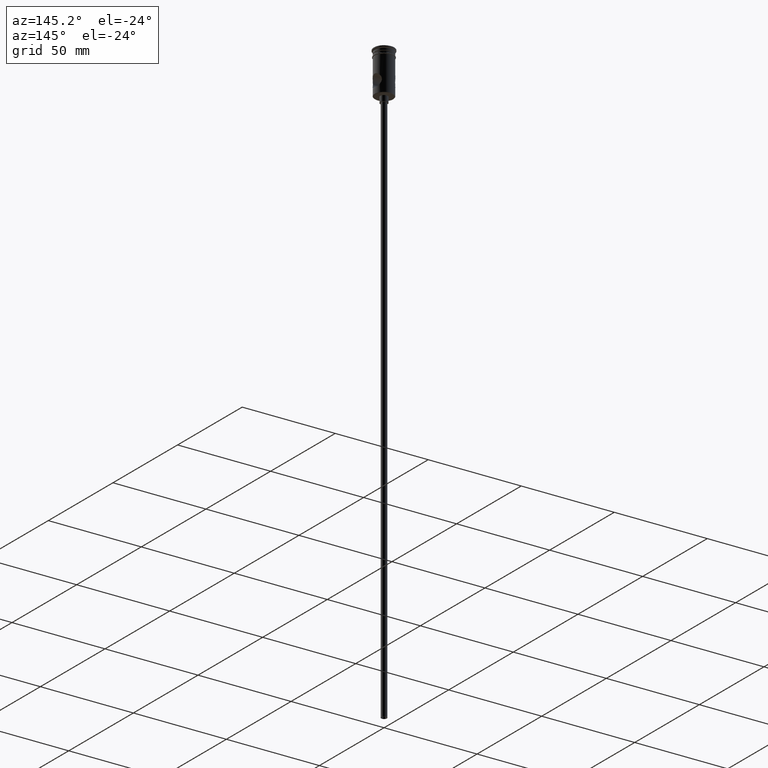
[diagram: clean part render]
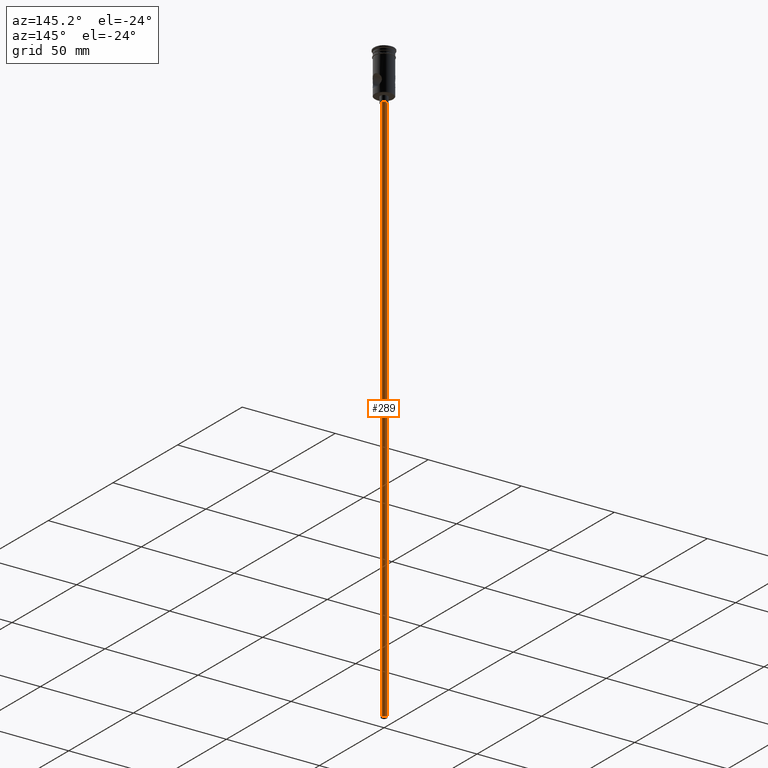
[diagram: same view with one face highlighted and labeled with its STEP entity id]
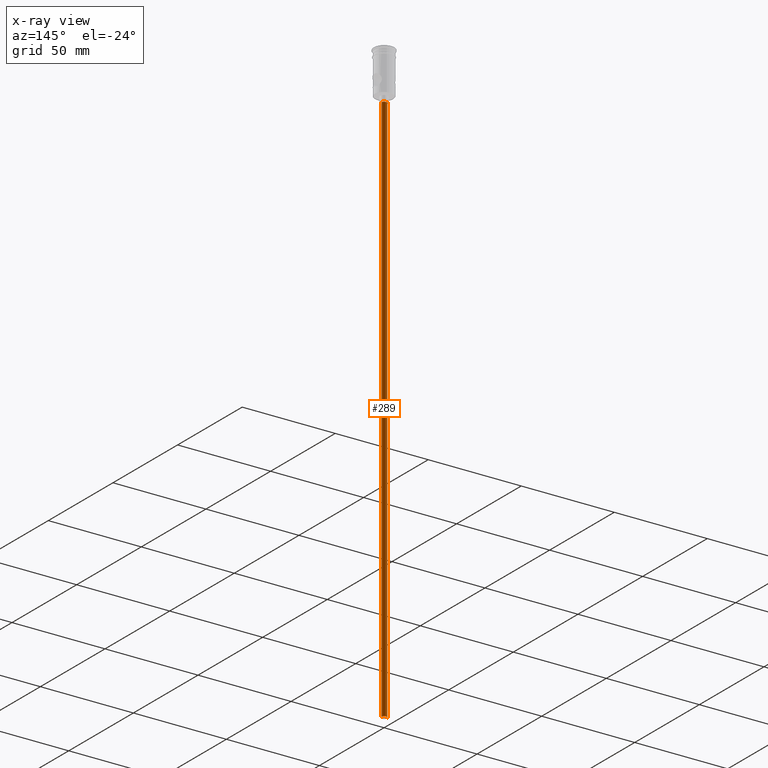
[diagram: x-ray of the same camera — body ghosted, the highlighted face saturated]
A machine part, auxiliary view. The second image highlights one B-rep face of the part: STEP entity #289.
The next image is the same camera in x-ray: the body ghosted, the highlighted face saturated — about 0% of this face is hidden behind the body in this view.
In plain terms, the highlighted cylindrical surface (edge-blend (fillet) strip) has radius 1.5 mm, axis along (-0, -0, 1).
Its self-contained STEP definition (entity closure, byte-faithful):
#38 = CARTESIAN_POINT ( 'NONE',  ( 1.500000000000000222, 0.000000000000000000, -322.5000000000000000 ) ) ;
#54 = ORIENTED_EDGE ( 'NONE', *, *, #1128, .T. ) ;
#80 = VERTEX_POINT ( 'NONE', #375 ) ;
#173 = FACE_OUTER_BOUND ( 'NONE', #1104, .T. ) ;
#194 = ORIENTED_EDGE ( 'NONE', *, *, #853, .T. ) ;
#204 = DIRECTION ( 'NONE',  ( 0.000000000000000000, 0.000000000000000000, -1.000000000000000000 ) ) ;
#289 = ADVANCED_FACE ( 'NONE', ( #173 ), #546, .T. ) ;
#325 = CARTESIAN_POINT ( 'NONE',  ( -1.500000000000000222, 1.836970198721030181E-16, -322.5000000000000000 ) ) ;
#339 = CARTESIAN_POINT ( 'NONE',  ( 0.000000000000000000, 0.000000000000000000, -322.5000000000000000 ) ) ;
#355 = CARTESIAN_POINT ( 'NONE',  ( -1.500000000000000222, 1.836970198721030181E-16, -322.5000000000000000 ) ) ;
#373 = DIRECTION ( 'NONE',  ( -1.000000000000000000, 0.000000000000000000, 0.000000000000000000 ) ) ;
#375 = CARTESIAN_POINT ( 'NONE',  ( 1.500000000000000222, 0.000000000000000000, -322.5000000000000000 ) ) ;
#546 = CYLINDRICAL_SURFACE ( 'NONE', #1078, 1.500000000000000222 ) ;
#643 = DIRECTION ( 'NONE',  ( 1.000000000000000000, 0.000000000000000000, 0.000000000000000000 ) ) ;
#646 = VERTEX_POINT ( 'NONE', #1114 ) ;
#659 = VERTEX_POINT ( 'NONE', #992 ) ;
#661 = DIRECTION ( 'NONE',  ( 0.000000000000000000, 0.000000000000000000, -1.000000000000000000 ) ) ;
#853 = EDGE_CURVE ( 'NONE', #646, #659, #940, .T. ) ;
#900 = VECTOR ( 'NONE', #980, 1000.000000000000000 ) ;
#940 = CIRCLE ( 'NONE', #1258, 1.500000000000000222 ) ;
#960 = CARTESIAN_POINT ( 'NONE',  ( 0.000000000000000000, 0.000000000000000000, -322.5000000000000000 ) ) ;
#977 = DIRECTION ( 'NONE',  ( -0.000000000000000000, -0.000000000000000000, 1.000000000000000000 ) ) ;
#980 = DIRECTION ( 'NONE',  ( -0.000000000000000000, -0.000000000000000000, 1.000000000000000000 ) ) ;
#983 = EDGE_CURVE ( 'NONE', #1274, #80, #1406, .T. ) ;
#992 = CARTESIAN_POINT ( 'NONE',  ( 1.500000000000000222, 0.000000000000000000, -25.50000000000000000 ) ) ;
#1044 = LINE ( 'NONE', #38, #1260 ) ;
#1076 = EDGE_CURVE ( 'NONE', #80, #659, #1044, .T. ) ;
#1078 = AXIS2_PLACEMENT_3D ( 'NONE', #960, #977, #643 ) ;
#1104 = EDGE_LOOP ( 'NONE', ( #1428, #54, #194, #1207 ) ) ;
#1106 = AXIS2_PLACEMENT_3D ( 'NONE', #339, #204, #373 ) ;
#1114 = CARTESIAN_POINT ( 'NONE',  ( -1.500000000000000222, 1.836970198721030181E-16, -25.50000000000000000 ) ) ;
#1128 = EDGE_CURVE ( 'NONE', #1274, #646, #1301, .T. ) ;
#1207 = ORIENTED_EDGE ( 'NONE', *, *, #1076, .F. ) ;
#1258 = AXIS2_PLACEMENT_3D ( 'NONE', #1425, #661, #1328 ) ;
#1260 = VECTOR ( 'NONE', #1261, 1000.000000000000000 ) ;
#1261 = DIRECTION ( 'NONE',  ( -0.000000000000000000, -0.000000000000000000, 1.000000000000000000 ) ) ;
#1274 = VERTEX_POINT ( 'NONE', #355 ) ;
#1301 = LINE ( 'NONE', #325, #900 ) ;
#1328 = DIRECTION ( 'NONE',  ( -1.000000000000000000, 0.000000000000000000, 0.000000000000000000 ) ) ;
#1406 = CIRCLE ( 'NONE', #1106, 1.500000000000000222 ) ;
#1425 = CARTESIAN_POINT ( 'NONE',  ( 0.000000000000000000, 0.000000000000000000, -25.50000000000000000 ) ) ;
#1428 = ORIENTED_EDGE ( 'NONE', *, *, #983, .F. ) ;